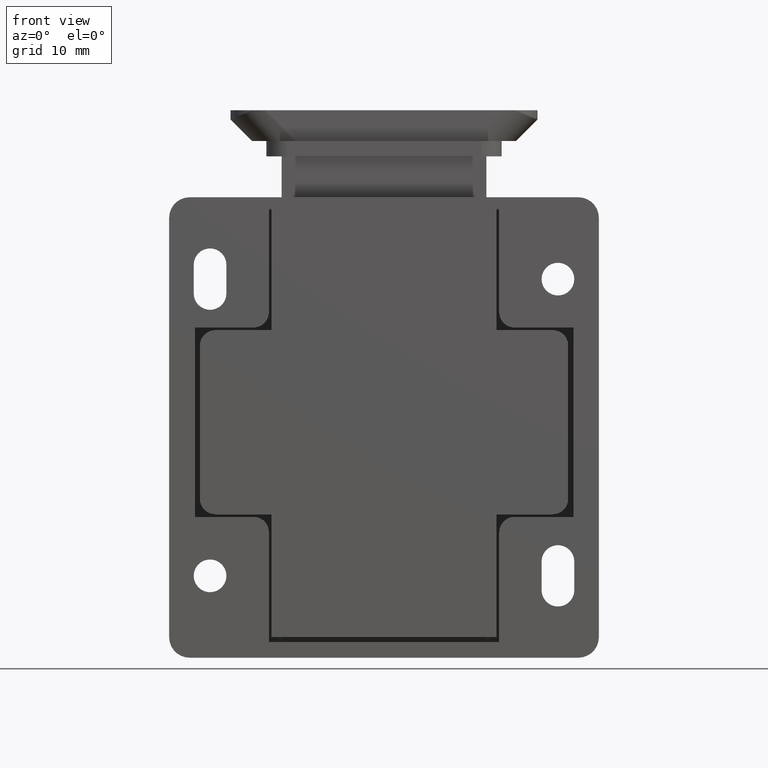
[diagram: clean part render]
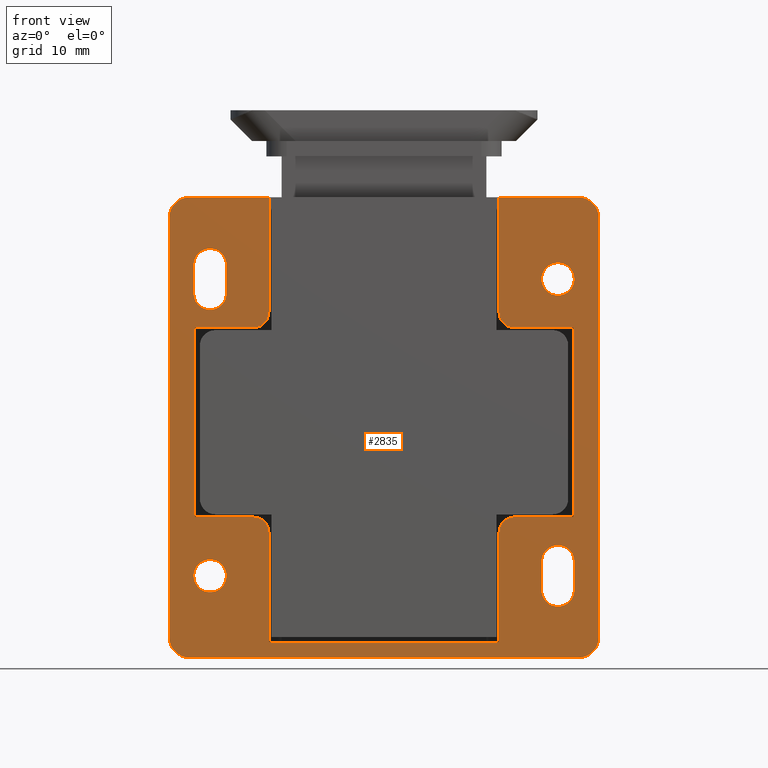
[diagram: same view with one face highlighted and labeled with its STEP entity id]
A machine part, front view. The second image highlights one B-rep face of the part: STEP entity #2835.
In plain terms, the highlighted planar face has unit normal (0, 1, 0).
Its self-contained STEP definition (entity closure, byte-faithful):
#10 = ORIENTED_EDGE ( 'NONE', *, *, #2199, .T. ) ;
#23 = AXIS2_PLACEMENT_3D ( 'NONE', #1539, #5714, #2156 ) ;
#39 = DIRECTION ( 'NONE',  ( -0.0000000000000000000, -0.0000000000000000000, -1.000000000000000000 ) ) ;
#40 = DIRECTION ( 'NONE',  ( 1.000000000000000000, 0.0000000000000000000, 0.0000000000000000000 ) ) ;
#55 = AXIS2_PLACEMENT_3D ( 'NONE', #6056, #2506, #6642 ) ;
#71 = VECTOR ( 'NONE', #3843, 1000.000000000000000 ) ;
#84 = EDGE_CURVE ( 'NONE', #6012, #1131, #5193, .T. ) ;
#86 = CIRCLE ( 'NONE', #55, 1.599999999999997200 ) ;
#119 = CARTESIAN_POINT ( 'NONE',  ( -11.25000000000000000, -33.74999600000000300, 0.0000000000000000000 ) ) ;
#127 = EDGE_CURVE ( 'NONE', #7586, #613, #2200, .T. ) ;
#145 = DIRECTION ( 'NONE',  ( 0.0000000000000000000, 0.0000000000000000000, 1.000000000000000000 ) ) ;
#146 = AXIS2_PLACEMENT_3D ( 'NONE', #4629, #1054, #5230 ) ;
#183 = VERTEX_POINT ( 'NONE', #2435 ) ;
#184 = CARTESIAN_POINT ( 'NONE',  ( 20.99999999999999600, -42.99998499999996000, 0.0000000000000000000 ) ) ;
#196 = EDGE_CURVE ( 'NONE', #6293, #5453, #3020, .T. ) ;
#238 = EDGE_CURVE ( 'NONE', #6968, #1131, #3401, .T. ) ;
#248 = ORIENTED_EDGE ( 'NONE', *, *, #5628, .F. ) ;
#296 = CARTESIAN_POINT ( 'NONE',  ( 12.74999999999998800, -13.75000299999996400, 0.0000000000000000000 ) ) ;
#298 = VERTEX_POINT ( 'NONE', #6141 ) ;
#319 = CIRCLE ( 'NONE', #377, 1.600000000000011200 ) ;
#334 = CARTESIAN_POINT ( 'NONE',  ( 20.99999999999999600, 0.0000000000000000000, 0.0000000000000000000 ) ) ;
#335 = EDGE_CURVE ( 'NONE', #3297, #2401, #319, .T. ) ;
#354 = ORIENTED_EDGE ( 'NONE', *, *, #4510, .T. ) ;
#377 = AXIS2_PLACEMENT_3D ( 'NONE', #6650, #145, #2918 ) ;
#416 = DIRECTION ( 'NONE',  ( -0.0000000000000000000, 1.000000000000000000, -0.0000000000000000000 ) ) ;
#431 = CARTESIAN_POINT ( 'NONE',  ( 18.60000000000001200, -36.99998499999995300, -2.602085213965210600E-015 ) ) ;
#509 = CARTESIAN_POINT ( 'NONE',  ( -13.80124391342406500, -44.99998499999996700, 0.0000000000000000000 ) ) ;
#537 = EDGE_CURVE ( 'NONE', #1814, #7268, #2361, .T. ) ;
#547 = CARTESIAN_POINT ( 'NONE',  ( -20.18694510414995600, 6.938893903907228400E-015, 0.0000000000000000000 ) ) ;
#582 = VECTOR ( 'NONE', #3157, 1000.000000000000000 ) ;
#606 = ORIENTED_EDGE ( 'NONE', *, *, #3098, .T. ) ;
#613 = VERTEX_POINT ( 'NONE', #2453 ) ;
#663 = EDGE_CURVE ( 'NONE', #6399, #5218, #4626, .T. ) ;
#716 = DIRECTION ( 'NONE',  ( 0.0000000000000000000, -1.000000000000000000, 0.0000000000000000000 ) ) ;
#774 = EDGE_CURVE ( 'NONE', #1921, #4194, #4054, .T. ) ;
#784 = DIRECTION ( 'NONE',  ( 1.000000000000000000, -6.221077293158205600E-015, 0.0000000000000000000 ) ) ;
#834 = CARTESIAN_POINT ( 'NONE',  ( -17.00839046360615100, -32.24999600000000300, 0.0000000000000000000 ) ) ;
#839 = CARTESIAN_POINT ( 'NONE',  ( -17.00000000000000000, -8.000000000000000000, -2.602085213965210600E-015 ) ) ;
#846 = LINE ( 'NONE', #2203, #2247 ) ;
#850 = CARTESIAN_POINT ( 'NONE',  ( 18.59999999999999800, -9.399999999999970200, -2.602085213965210600E-015 ) ) ;
#851 = EDGE_LOOP ( 'NONE', ( #3560, #6470 ) ) ;
#857 = CARTESIAN_POINT ( 'NONE',  ( -17.00000000000000000, -35.59998499999995400, 0.0000000000000000000 ) ) ;
#963 = FACE_OUTER_BOUND ( 'NONE', #5041, .T. ) ;
#1001 = VERTEX_POINT ( 'NONE', #3296 ) ;
#1015 = EDGE_CURVE ( 'NONE', #7297, #183, #3749, .T. ) ;
#1054 = DIRECTION ( 'NONE',  ( 0.0000000000000000000, 0.0000000000000000000, 1.000000000000000000 ) ) ;
#1084 = CARTESIAN_POINT ( 'NONE',  ( -11.25000000000000000, 0.0000000000000000000, 0.0000000000000000000 ) ) ;
#1085 = VERTEX_POINT ( 'NONE', #431 ) ;
#1095 = ORIENTED_EDGE ( 'NONE', *, *, #196, .F. ) ;
#1109 = LINE ( 'NONE', #1117, #5673 ) ;
#1110 = VECTOR ( 'NONE', #784, 1000.000000000000000 ) ;
#1117 = CARTESIAN_POINT ( 'NONE',  ( -18.59999999999999800, -38.39998499999995800, 0.0000000000000000000 ) ) ;
#1131 = VERTEX_POINT ( 'NONE', #6334 ) ;
#1134 = FACE_BOUND ( 'NONE', #7036, .T. ) ;
#1145 = VECTOR ( 'NONE', #416, 1000.000000000000000 ) ;
#1168 = CARTESIAN_POINT ( 'NONE',  ( 15.40000000000000000, -6.599999999999968600, -2.602085213965210600E-015 ) ) ;
#1217 = EDGE_CURVE ( 'NONE', #3996, #3371, #5621, .T. ) ;
#1226 = ORIENTED_EDGE ( 'NONE', *, *, #2937, .F. ) ;
#1241 = VERTEX_POINT ( 'NONE', #3493 ) ;
#1253 = DIRECTION ( 'NONE',  ( 1.000000000000000000, -0.0000000000000000000, -0.0000000000000000000 ) ) ;
#1257 = CARTESIAN_POINT ( 'NONE',  ( 18.59999999999999800, 0.0000000000000000000, -2.602085213965210600E-015 ) ) ;
#1260 = CARTESIAN_POINT ( 'NONE',  ( -15.40000000000000000, -35.59998499999994700, 0.0000000000000000000 ) ) ;
#1286 = DIRECTION ( 'NONE',  ( 1.000000000000000000, 0.0000000000000000000, 1.919224214266290900E-029 ) ) ;
#1288 = ORIENTED_EDGE ( 'NONE', *, *, #774, .F. ) ;
#1322 = LINE ( 'NONE', #334, #1145 ) ;
#1399 = AXIS2_PLACEMENT_3D ( 'NONE', #2176, #6316, #2772 ) ;
#1426 = DIRECTION ( 'NONE',  ( 1.000000000000000000, 0.0000000000000000000, 0.0000000000000000000 ) ) ;
#1430 = VECTOR ( 'NONE', #5526, 1000.000000000000000 ) ;
#1437 = DIRECTION ( 'NONE',  ( -1.000000000000000000, 0.0000000000000000000, 0.0000000000000000000 ) ) ;
#1440 = CARTESIAN_POINT ( 'NONE',  ( 18.59999999999999800, -6.599999999999968600, -2.602085213965210600E-015 ) ) ;
#1442 = EDGE_CURVE ( 'NONE', #6925, #7268, #1322, .T. ) ;
#1539 = CARTESIAN_POINT ( 'NONE',  ( -12.75000000000000000, -12.25000300000000100, -2.602085213965210600E-015 ) ) ;
#1548 = EDGE_CURVE ( 'NONE', #1085, #1241, #6509, .T. ) ;
#1563 = VERTEX_POINT ( 'NONE', #3363 ) ;
#1593 = DIRECTION ( 'NONE',  ( 0.0000000000000000000, 0.0000000000000000000, -1.000000000000000000 ) ) ;
#1599 = ORIENTED_EDGE ( 'NONE', *, *, #5500, .F. ) ;
#1628 = DIRECTION ( 'NONE',  ( -0.0000000000000000000, -0.0000000000000000000, -1.000000000000000000 ) ) ;
#1633 = ORIENTED_EDGE ( 'NONE', *, *, #5082, .T. ) ;
#1654 = VERTEX_POINT ( 'NONE', #1440 ) ;
#1658 = CIRCLE ( 'NONE', #3556, 1.499999999999999600 ) ;
#1665 = LINE ( 'NONE', #547, #4678 ) ;
#1731 = ORIENTED_EDGE ( 'NONE', *, *, #3581, .T. ) ;
#1770 = DIRECTION ( 'NONE',  ( 0.0000000000000000000, 0.0000000000000000000, 1.000000000000000000 ) ) ;
#1814 = VERTEX_POINT ( 'NONE', #5742 ) ;
#1869 = EDGE_CURVE ( 'NONE', #4194, #2488, #7250, .T. ) ;
#1870 = CIRCLE ( 'NONE', #1399, 2.000000000000001800 ) ;
#1884 = AXIS2_PLACEMENT_3D ( 'NONE', #3406, #7528, #4016 ) ;
#1921 = VERTEX_POINT ( 'NONE', #4697 ) ;
#2121 = ORIENTED_EDGE ( 'NONE', *, *, #3025, .T. ) ;
#2156 = DIRECTION ( 'NONE',  ( 1.000000000000000000, 0.0000000000000000000, 0.0000000000000000000 ) ) ;
#2166 = ORIENTED_EDGE ( 'NONE', *, *, #6134, .F. ) ;
#2176 = CARTESIAN_POINT ( 'NONE',  ( -19.00000000000000400, -1.999999999999993600, -2.602085213965210600E-015 ) ) ;
#2199 = EDGE_CURVE ( 'NONE', #1563, #6084, #1870, .T. ) ;
#2200 = LINE ( 'NONE', #5451, #6527 ) ;
#2203 = CARTESIAN_POINT ( 'NONE',  ( -18.50000000000000000, -32.24999600000000300, 0.0000000000000000000 ) ) ;
#2213 = EDGE_CURVE ( 'NONE', #613, #6841, #5074, .T. ) ;
#2223 = PLANE ( 'NONE',  #146 ) ;
#2247 = VECTOR ( 'NONE', #4588, 1000.000000000000000 ) ;
#2258 = DIRECTION ( 'NONE',  ( -1.000000000000000000, -0.0000000000000000000, -0.0000000000000000000 ) ) ;
#2280 = DIRECTION ( 'NONE',  ( -0.0000000000000000000, 1.000000000000000000, -0.0000000000000000000 ) ) ;
#2308 = DIRECTION ( 'NONE',  ( 0.0000000000000000000, 1.000000000000000000, 0.0000000000000000000 ) ) ;
#2309 = ORIENTED_EDGE ( 'NONE', *, *, #1548, .T. ) ;
#2361 = CIRCLE ( 'NONE', #5191, 2.000000000000001800 ) ;
#2381 = CARTESIAN_POINT ( 'NONE',  ( -17.00839046360615100, -13.75000300000000000, -2.406930168685028600E-013 ) ) ;
#2401 = VERTEX_POINT ( 'NONE', #4195 ) ;
#2425 = LINE ( 'NONE', #1257, #6976 ) ;
#2430 = VERTEX_POINT ( 'NONE', #1168 ) ;
#2435 = CARTESIAN_POINT ( 'NONE',  ( 11.24999999999999600, -33.74999600000000300, 0.0000000000000000000 ) ) ;
#2442 = VECTOR ( 'NONE', #6250, 1000.000000000000000 ) ;
#2453 = CARTESIAN_POINT ( 'NONE',  ( -15.40000000000000000, -38.39998499999995800, 0.0000000000000000000 ) ) ;
#2456 = CARTESIAN_POINT ( 'NONE',  ( -11.25000000000000000, -36.47641892508613600, 0.0000000000000000000 ) ) ;
#2481 = LINE ( 'NONE', #7613, #7198 ) ;
#2488 = VERTEX_POINT ( 'NONE', #119 ) ;
#2506 = DIRECTION ( 'NONE',  ( 0.0000000000000000000, 0.0000000000000000000, 1.000000000000000000 ) ) ;
#2519 = FACE_BOUND ( 'NONE', #6849, .T. ) ;
#2646 = ORIENTED_EDGE ( 'NONE', *, *, #4779, .T. ) ;
#2664 = ORIENTED_EDGE ( 'NONE', *, *, #537, .T. ) ;
#2686 = EDGE_LOOP ( 'NONE', ( #2166, #3551, #5374, #3028 ) ) ;
#2714 = EDGE_CURVE ( 'NONE', #1241, #1085, #3645, .T. ) ;
#2772 = DIRECTION ( 'NONE',  ( 1.000000000000000000, 8.673617379884027600E-016, 0.0000000000000000000 ) ) ;
#2824 = VECTOR ( 'NONE', #2933, 1000.000000000000000 ) ;
#2835 = ADVANCED_FACE ( 'NONE', ( #2519, #5878, #1134, #4122, #963 ), #2223, .F. ) ;
#2866 = CARTESIAN_POINT ( 'NONE',  ( -18.99999999999999600, 3.069583752304757500E-015, 0.0000000000000000000 ) ) ;
#2918 = DIRECTION ( 'NONE',  ( 1.000000000000000000, 0.0000000000000000000, 0.0000000000000000000 ) ) ;
#2924 = CARTESIAN_POINT ( 'NONE',  ( -18.59999999999999800, -35.59998499999994700, 0.0000000000000000000 ) ) ;
#2933 = DIRECTION ( 'NONE',  ( 0.0000000000000000000, -1.000000000000000000, 0.0000000000000000000 ) ) ;
#2937 = EDGE_CURVE ( 'NONE', #4359, #6399, #4405, .T. ) ;
#2975 = CARTESIAN_POINT ( 'NONE',  ( -12.75000000000000000, -33.74999600000000300, -2.602085213965210600E-015 ) ) ;
#2984 = CARTESIAN_POINT ( 'NONE',  ( 18.50000000000000000, -32.24999600000000300, -0.0000000000000000000 ) ) ;
#2997 = AXIS2_PLACEMENT_3D ( 'NONE', #5186, #1593, #5758 ) ;
#3020 = LINE ( 'NONE', #2381, #7549 ) ;
#3025 = EDGE_CURVE ( 'NONE', #1921, #298, #7331, .T. ) ;
#3028 = ORIENTED_EDGE ( 'NONE', *, *, #4742, .F. ) ;
#3059 = VECTOR ( 'NONE', #7152, 1000.000000000000000 ) ;
#3093 = AXIS2_PLACEMENT_3D ( 'NONE', #857, #5024, #1437 ) ;
#3098 = EDGE_CURVE ( 'NONE', #6512, #1654, #2425, .T. ) ;
#3144 = CIRCLE ( 'NONE', #4570, 1.499999999999999600 ) ;
#3157 = DIRECTION ( 'NONE',  ( -0.0000000000000000000, 1.000000000000000000, -0.0000000000000000000 ) ) ;
#3177 = DIRECTION ( 'NONE',  ( 1.000000000000000000, 0.0000000000000000000, 0.0000000000000000000 ) ) ;
#3194 = DIRECTION ( 'NONE',  ( -0.0000000000000000000, 1.000000000000000000, -0.0000000000000000000 ) ) ;
#3256 = LINE ( 'NONE', #6606, #3059 ) ;
#3259 = ORIENTED_EDGE ( 'NONE', *, *, #6683, .T. ) ;
#3296 = CARTESIAN_POINT ( 'NONE',  ( 11.24999999999999600, -12.25000299999996400, 0.0000000000000000000 ) ) ;
#3297 = VERTEX_POINT ( 'NONE', #6891 ) ;
#3320 = DIRECTION ( 'NONE',  ( -0.0000000000000000000, -0.0000000000000000000, -1.000000000000000000 ) ) ;
#3363 = CARTESIAN_POINT ( 'NONE',  ( -21.00000000000000000, -2.000000000000008900, 0.0000000000000000000 ) ) ;
#3371 = VERTEX_POINT ( 'NONE', #6168 ) ;
#3401 = LINE ( 'NONE', #2456, #7170 ) ;
#3406 = CARTESIAN_POINT ( 'NONE',  ( 17.00000000000000000, -36.99998499999995300, -2.602085213965210600E-015 ) ) ;
#3493 = CARTESIAN_POINT ( 'NONE',  ( 15.39999999999999000, -36.99998499999995300, -2.602085213965210600E-015 ) ) ;
#3518 = DIRECTION ( 'NONE',  ( -1.000000000000000000, 3.259889727059875400E-015, -0.0000000000000000000 ) ) ;
#3551 = ORIENTED_EDGE ( 'NONE', *, *, #2213, .F. ) ;
#3556 = AXIS2_PLACEMENT_3D ( 'NONE', #5227, #1628, #5802 ) ;
#3560 = ORIENTED_EDGE ( 'NONE', *, *, #5795, .T. ) ;
#3578 = DIRECTION ( 'NONE',  ( 1.000000000000000000, 0.0000000000000000000, 0.0000000000000000000 ) ) ;
#3581 = EDGE_CURVE ( 'NONE', #4452, #1001, #4026, .T. ) ;
#3582 = VECTOR ( 'NONE', #6003, 1000.000000000000000 ) ;
#3606 = CARTESIAN_POINT ( 'NONE',  ( 12.74999999999999600, -12.25000299999996400, -2.602085213965210600E-015 ) ) ;
#3607 = DIRECTION ( 'NONE',  ( -0.0000000000000000000, -0.0000000000000000000, -1.000000000000000000 ) ) ;
#3645 = CIRCLE ( 'NONE', #1884, 1.600000000000011200 ) ;
#3720 = EDGE_CURVE ( 'NONE', #4249, #6512, #86, .T. ) ;
#3723 = CARTESIAN_POINT ( 'NONE',  ( 11.24999999999999600, 0.0000000000000000000, 0.0000000000000000000 ) ) ;
#3749 = LINE ( 'NONE', #3723, #582 ) ;
#3772 = CARTESIAN_POINT ( 'NONE',  ( 11.25000000000000000, -13.75000299999995500, -0.0000000000000000000 ) ) ;
#3843 = DIRECTION ( 'NONE',  ( -0.0000000000000000000, 1.000000000000000000, -0.0000000000000000000 ) ) ;
#3896 = AXIS2_PLACEMENT_3D ( 'NONE', #6859, #3320, #7444 ) ;
#3945 = CARTESIAN_POINT ( 'NONE',  ( -12.75000000000000000, -13.75000300000000000, -2.406930168685027600E-013 ) ) ;
#3996 = VERTEX_POINT ( 'NONE', #5801 ) ;
#4016 = DIRECTION ( 'NONE',  ( 1.000000000000000000, 0.0000000000000000000, 0.0000000000000000000 ) ) ;
#4026 = CIRCLE ( 'NONE', #5807, 1.499999999999999600 ) ;
#4054 = LINE ( 'NONE', #509, #5432 ) ;
#4081 = ORIENTED_EDGE ( 'NONE', *, *, #3720, .T. ) ;
#4094 = CIRCLE ( 'NONE', #3896, 2.000000000000001800 ) ;
#4100 = ORIENTED_EDGE ( 'NONE', *, *, #6940, .F. ) ;
#4103 = DIRECTION ( 'NONE',  ( 0.0000000000000000000, -1.000000000000000000, 0.0000000000000000000 ) ) ;
#4120 = ORIENTED_EDGE ( 'NONE', *, *, #5080, .T. ) ;
#4122 = FACE_BOUND ( 'NONE', #2686, .T. ) ;
#4194 = VERTEX_POINT ( 'NONE', #7109 ) ;
#4195 = CARTESIAN_POINT ( 'NONE',  ( -15.39999999999999000, -8.000000000000000000, -2.602085213965210600E-015 ) ) ;
#4209 = ORIENTED_EDGE ( 'NONE', *, *, #1015, .T. ) ;
#4215 = DIRECTION ( 'NONE',  ( 1.000000000000000000, 1.156482317317871700E-015, 0.0000000000000000000 ) ) ;
#4249 = VERTEX_POINT ( 'NONE', #4832 ) ;
#4359 = VERTEX_POINT ( 'NONE', #4970 ) ;
#4405 = LINE ( 'NONE', #5318, #2824 ) ;
#4421 = CARTESIAN_POINT ( 'NONE',  ( -11.25000000000000000, -12.25000300000000300, 0.0000000000000000000 ) ) ;
#4452 = VERTEX_POINT ( 'NONE', #296 ) ;
#4455 = CARTESIAN_POINT ( 'NONE',  ( -18.50000000000000000, -13.75000300000000000, 0.0000000000000000000 ) ) ;
#4510 = EDGE_CURVE ( 'NONE', #6968, #5453, #6313, .T. ) ;
#4570 = AXIS2_PLACEMENT_3D ( 'NONE', #2975, #7102, #3578 ) ;
#4579 = DIRECTION ( 'NONE',  ( 1.000000000000000000, 0.0000000000000000000, 0.0000000000000000000 ) ) ;
#4588 = DIRECTION ( 'NONE',  ( 0.0000000000000000000, 1.000000000000000000, 0.0000000000000000000 ) ) ;
#4604 = DIRECTION ( 'NONE',  ( 0.0000000000000000000, 0.0000000000000000000, 1.000000000000000000 ) ) ;
#4626 = LINE ( 'NONE', #2984, #1430 ) ;
#4627 = CARTESIAN_POINT ( 'NONE',  ( 17.00000000000000000, -36.99998499999995300, -2.602085213965210600E-015 ) ) ;
#4629 = CARTESIAN_POINT ( 'NONE',  ( 0.0000000000000000000, 0.0000000000000000000, -2.602085213965210600E-015 ) ) ;
#4678 = VECTOR ( 'NONE', #3518, 1000.000000000000000 ) ;
#4689 = ORIENTED_EDGE ( 'NONE', *, *, #238, .F. ) ;
#4697 = CARTESIAN_POINT ( 'NONE',  ( -19.00000000000000400, -44.99998499999996700, 0.0000000000000000000 ) ) ;
#4742 = EDGE_CURVE ( 'NONE', #5062, #7586, #6400, .T. ) ;
#4752 = DIRECTION ( 'NONE',  ( -0.0000000000000000000, -0.0000000000000000000, -1.000000000000000000 ) ) ;
#4779 = EDGE_CURVE ( 'NONE', #1001, #6012, #4836, .T. ) ;
#4832 = CARTESIAN_POINT ( 'NONE',  ( 15.40000000000000000, -9.399999999999970200, -2.602085213965210600E-015 ) ) ;
#4836 = LINE ( 'NONE', #5611, #71 ) ;
#4900 = EDGE_CURVE ( 'NONE', #6925, #6181, #4094, .T. ) ;
#4934 = CARTESIAN_POINT ( 'NONE',  ( 20.99999999999999600, -2.000000000000117700, 0.0000000000000000000 ) ) ;
#4957 = AXIS2_PLACEMENT_3D ( 'NONE', #5353, #1770, #5923 ) ;
#4964 = ORIENTED_EDGE ( 'NONE', *, *, #1869, .F. ) ;
#4968 = CARTESIAN_POINT ( 'NONE',  ( 18.50000000000000000, -32.24999600000000300, -0.0000000000000000000 ) ) ;
#4970 = CARTESIAN_POINT ( 'NONE',  ( 18.50000000000000000, -13.75000300000000000, -0.0000000000000000000 ) ) ;
#5008 = DIRECTION ( 'NONE',  ( 0.0000000000000000000, 0.0000000000000000000, 1.000000000000000000 ) ) ;
#5024 = DIRECTION ( 'NONE',  ( 0.0000000000000000000, 0.0000000000000000000, -1.000000000000000000 ) ) ;
#5041 = EDGE_LOOP ( 'NONE', ( #4689, #354, #1095, #1599, #6101, #1633, #4964, #1288, #2121, #6523, #10, #248, #2664, #7223, #7656, #6840, #4209, #6022, #7368, #1226, #4100, #1731, #2646, #7324 ) ) ;
#5062 = VERTEX_POINT ( 'NONE', #2924 ) ;
#5074 = CIRCLE ( 'NONE', #2997, 1.599999999999997200 ) ;
#5080 = EDGE_CURVE ( 'NONE', #1654, #2430, #7659, .T. ) ;
#5082 = EDGE_CURVE ( 'NONE', #3371, #2488, #3144, .T. ) ;
#5186 = CARTESIAN_POINT ( 'NONE',  ( -17.00000000000000000, -38.39998499999995800, 0.0000000000000000000 ) ) ;
#5191 = AXIS2_PLACEMENT_3D ( 'NONE', #6526, #4752, #3177 ) ;
#5193 = LINE ( 'NONE', #7321, #3582 ) ;
#5218 = VERTEX_POINT ( 'NONE', #6044 ) ;
#5227 = CARTESIAN_POINT ( 'NONE',  ( 12.74999999999999600, -33.74999600000000300, -2.602085213965210600E-015 ) ) ;
#5230 = DIRECTION ( 'NONE',  ( 1.000000000000000000, 0.0000000000000000000, -0.0000000000000000000 ) ) ;
#5242 = VECTOR ( 'NONE', #2258, 1000.000000000000000 ) ;
#5318 = CARTESIAN_POINT ( 'NONE',  ( 18.50000000000000000, -13.75000300000000000, -0.0000000000000000000 ) ) ;
#5353 = CARTESIAN_POINT ( 'NONE',  ( 17.00000000000000000, -6.599999999999968600, -2.602085213965210600E-015 ) ) ;
#5374 = ORIENTED_EDGE ( 'NONE', *, *, #127, .F. ) ;
#5432 = VECTOR ( 'NONE', #1253, 1000.000000000000000 ) ;
#5441 = CARTESIAN_POINT ( 'NONE',  ( -18.59999999999999800, -38.39998499999995800, -2.602085213965210600E-015 ) ) ;
#5451 = CARTESIAN_POINT ( 'NONE',  ( -15.40000000000000000, -35.59998499999994700, 0.0000000000000000000 ) ) ;
#5453 = VERTEX_POINT ( 'NONE', #3945 ) ;
#5500 = EDGE_CURVE ( 'NONE', #3996, #6293, #846, .T. ) ;
#5518 = VECTOR ( 'NONE', #2280, 1000.000000000000000 ) ;
#5526 = DIRECTION ( 'NONE',  ( -1.000000000000000000, 0.0000000000000000000, 0.0000000000000000000 ) ) ;
#5537 = EDGE_CURVE ( 'NONE', #6181, #7297, #6575, .T. ) ;
#5542 = CARTESIAN_POINT ( 'NONE',  ( 11.24999999999999600, -44.99998499999991000, 0.0000000000000000000 ) ) ;
#5611 = CARTESIAN_POINT ( 'NONE',  ( 11.24999999999999600, 0.0000000000000000000, 0.0000000000000000000 ) ) ;
#5621 = LINE ( 'NONE', #834, #2442 ) ;
#5628 = EDGE_CURVE ( 'NONE', #1814, #6084, #1665, .T. ) ;
#5673 = VECTOR ( 'NONE', #2308, 1000.000000000000000 ) ;
#5714 = DIRECTION ( 'NONE',  ( -0.0000000000000000000, -0.0000000000000000000, -1.000000000000000000 ) ) ;
#5742 = CARTESIAN_POINT ( 'NONE',  ( 18.99999999999998900, -1.208062258759704400E-013, 0.0000000000000000000 ) ) ;
#5758 = DIRECTION ( 'NONE',  ( -1.000000000000000000, 0.0000000000000000000, 0.0000000000000000000 ) ) ;
#5795 = EDGE_CURVE ( 'NONE', #2401, #3297, #6115, .T. ) ;
#5801 = CARTESIAN_POINT ( 'NONE',  ( -18.50000000000000000, -32.24999600000000300, 0.0000000000000000000 ) ) ;
#5802 = DIRECTION ( 'NONE',  ( 1.000000000000000000, 0.0000000000000000000, 0.0000000000000000000 ) ) ;
#5807 = AXIS2_PLACEMENT_3D ( 'NONE', #3606, #39, #4215 ) ;
#5811 = CARTESIAN_POINT ( 'NONE',  ( 20.99999999999999600, -44.99998499999991000, 0.0000000000000000000 ) ) ;
#5834 = AXIS2_PLACEMENT_3D ( 'NONE', #4627, #4604, #4579 ) ;
#5878 = FACE_BOUND ( 'NONE', #851, .T. ) ;
#5923 = DIRECTION ( 'NONE',  ( 1.000000000000000000, 0.0000000000000000000, 0.0000000000000000000 ) ) ;
#6003 = DIRECTION ( 'NONE',  ( -1.000000000000000000, 0.0000000000000000000, 0.0000000000000000000 ) ) ;
#6012 = VERTEX_POINT ( 'NONE', #6921 ) ;
#6019 = EDGE_CURVE ( 'NONE', #183, #5218, #1658, .T. ) ;
#6022 = ORIENTED_EDGE ( 'NONE', *, *, #6019, .T. ) ;
#6036 = DIRECTION ( 'NONE',  ( 0.0000000000000000000, 1.000000000000000000, -0.0000000000000000000 ) ) ;
#6044 = CARTESIAN_POINT ( 'NONE',  ( 12.74999999999999600, -32.24999600000000300, 0.0000000000000000000 ) ) ;
#6056 = CARTESIAN_POINT ( 'NONE',  ( 17.00000000000000000, -9.399999999999970200, -2.602085213965210600E-015 ) ) ;
#6084 = VERTEX_POINT ( 'NONE', #2866 ) ;
#6101 = ORIENTED_EDGE ( 'NONE', *, *, #1217, .T. ) ;
#6115 = CIRCLE ( 'NONE', #7247, 1.600000000000011200 ) ;
#6134 = EDGE_CURVE ( 'NONE', #6841, #5062, #1109, .T. ) ;
#6141 = CARTESIAN_POINT ( 'NONE',  ( -21.00000000000000000, -42.99998499999996000, 0.0000000000000000000 ) ) ;
#6168 = CARTESIAN_POINT ( 'NONE',  ( -12.75000000000000000, -32.24999600000000300, 8.172806091553584400E-029 ) ) ;
#6181 = VERTEX_POINT ( 'NONE', #6498 ) ;
#6250 = DIRECTION ( 'NONE',  ( 1.000000000000000000, 0.0000000000000000000, 1.919224214266290900E-029 ) ) ;
#6293 = VERTEX_POINT ( 'NONE', #4455 ) ;
#6313 = CIRCLE ( 'NONE', #23, 1.499999999999999600 ) ;
#6316 = DIRECTION ( 'NONE',  ( -0.0000000000000000000, -0.0000000000000000000, -1.000000000000000000 ) ) ;
#6334 = CARTESIAN_POINT ( 'NONE',  ( -11.25000000000000000, -1.499999999999986000, 0.0000000000000000000 ) ) ;
#6399 = VERTEX_POINT ( 'NONE', #4968 ) ;
#6400 = CIRCLE ( 'NONE', #3093, 1.599999999999997200 ) ;
#6470 = ORIENTED_EDGE ( 'NONE', *, *, #335, .T. ) ;
#6498 = CARTESIAN_POINT ( 'NONE',  ( 18.99999999999999600, -44.99998499999991000, 0.0000000000000000000 ) ) ;
#6509 = CIRCLE ( 'NONE', #5834, 1.600000000000011200 ) ;
#6512 = VERTEX_POINT ( 'NONE', #850 ) ;
#6523 = ORIENTED_EDGE ( 'NONE', *, *, #6846, .F. ) ;
#6526 = CARTESIAN_POINT ( 'NONE',  ( 18.99999999999999600, -2.000000000000117700, -2.602085213965210600E-015 ) ) ;
#6527 = VECTOR ( 'NONE', #716, 1000.000000000000000 ) ;
#6575 = LINE ( 'NONE', #5811, #5242 ) ;
#6606 = CARTESIAN_POINT ( 'NONE',  ( -21.00000000000000000, -44.99998499999993100, 0.0000000000000000000 ) ) ;
#6642 = DIRECTION ( 'NONE',  ( 1.000000000000000000, 0.0000000000000000000, 0.0000000000000000000 ) ) ;
#6650 = CARTESIAN_POINT ( 'NONE',  ( -17.00000000000000000, -8.000000000000000000, -2.602085213965210600E-015 ) ) ;
#6683 = EDGE_CURVE ( 'NONE', #2430, #4249, #2481, .T. ) ;
#6840 = ORIENTED_EDGE ( 'NONE', *, *, #5537, .T. ) ;
#6841 = VERTEX_POINT ( 'NONE', #5441 ) ;
#6846 = EDGE_CURVE ( 'NONE', #1563, #298, #3256, .T. ) ;
#6849 = EDGE_LOOP ( 'NONE', ( #2309, #7567 ) ) ;
#6859 = CARTESIAN_POINT ( 'NONE',  ( 18.99999999999999600, -42.99998499999996000, -2.602085213965210600E-015 ) ) ;
#6891 = CARTESIAN_POINT ( 'NONE',  ( -18.60000000000001200, -8.000000000000000000, -2.602085213965210600E-015 ) ) ;
#6921 = CARTESIAN_POINT ( 'NONE',  ( 11.25000000000000000, -1.499999999999986000, 0.0000000000000000000 ) ) ;
#6925 = VERTEX_POINT ( 'NONE', #184 ) ;
#6940 = EDGE_CURVE ( 'NONE', #4452, #4359, #7208, .T. ) ;
#6968 = VERTEX_POINT ( 'NONE', #4421 ) ;
#6976 = VECTOR ( 'NONE', #6036, 1000.000000000000000 ) ;
#7036 = EDGE_LOOP ( 'NONE', ( #606, #4120, #3259, #4081 ) ) ;
#7102 = DIRECTION ( 'NONE',  ( -0.0000000000000000000, -0.0000000000000000000, -1.000000000000000000 ) ) ;
#7109 = CARTESIAN_POINT ( 'NONE',  ( -11.25000000000000000, -44.99998499999989600, 0.0000000000000000000 ) ) ;
#7144 = CARTESIAN_POINT ( 'NONE',  ( -19.00000000000000400, -42.99998499999996000, -2.602085213965210600E-015 ) ) ;
#7152 = DIRECTION ( 'NONE',  ( -0.0000000000000000000, -1.000000000000000000, -0.0000000000000000000 ) ) ;
#7170 = VECTOR ( 'NONE', #3194, 1000.000000000000000 ) ;
#7198 = VECTOR ( 'NONE', #4103, 1000.000000000000000 ) ;
#7208 = LINE ( 'NONE', #3772, #1110 ) ;
#7223 = ORIENTED_EDGE ( 'NONE', *, *, #1442, .F. ) ;
#7247 = AXIS2_PLACEMENT_3D ( 'NONE', #839, #5008, #1426 ) ;
#7250 = LINE ( 'NONE', #1084, #5518 ) ;
#7268 = VERTEX_POINT ( 'NONE', #4934 ) ;
#7297 = VERTEX_POINT ( 'NONE', #5542 ) ;
#7321 = CARTESIAN_POINT ( 'NONE',  ( 11.25000000000000000, -1.499999999999986000, 0.0000000000000000000 ) ) ;
#7324 = ORIENTED_EDGE ( 'NONE', *, *, #84, .T. ) ;
#7331 = CIRCLE ( 'NONE', #7409, 2.000000000000001800 ) ;
#7368 = ORIENTED_EDGE ( 'NONE', *, *, #663, .F. ) ;
#7409 = AXIS2_PLACEMENT_3D ( 'NONE', #7144, #3607, #40 ) ;
#7444 = DIRECTION ( 'NONE',  ( 1.000000000000000000, 0.0000000000000000000, 0.0000000000000000000 ) ) ;
#7528 = DIRECTION ( 'NONE',  ( 0.0000000000000000000, 0.0000000000000000000, 1.000000000000000000 ) ) ;
#7549 = VECTOR ( 'NONE', #1286, 1000.000000000000000 ) ;
#7567 = ORIENTED_EDGE ( 'NONE', *, *, #2714, .T. ) ;
#7586 = VERTEX_POINT ( 'NONE', #1260 ) ;
#7613 = CARTESIAN_POINT ( 'NONE',  ( 15.40000000000000000, 0.0000000000000000000, -2.602085213965210600E-015 ) ) ;
#7656 = ORIENTED_EDGE ( 'NONE', *, *, #4900, .T. ) ;
#7659 = CIRCLE ( 'NONE', #4957, 1.599999999999997200 ) ;